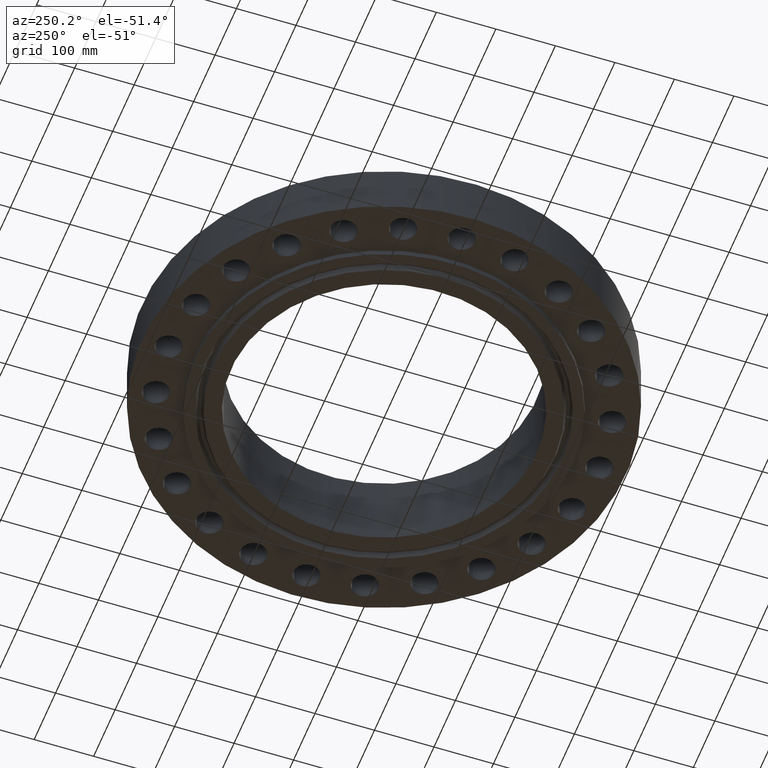
[diagram: clean part render]
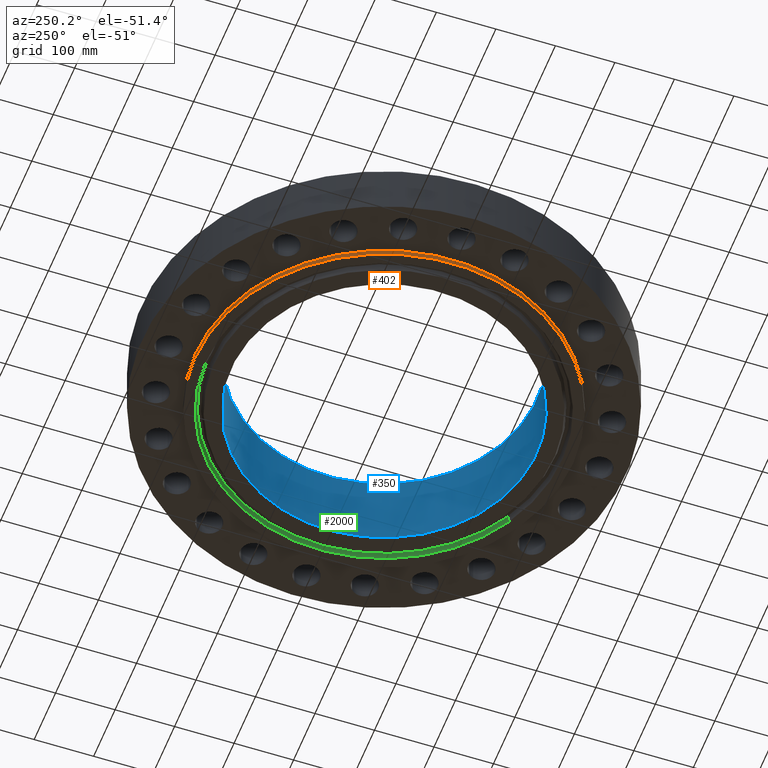
[diagram: same view with three faces highlighted in distinct colors, each labeled with its STEP entity id]
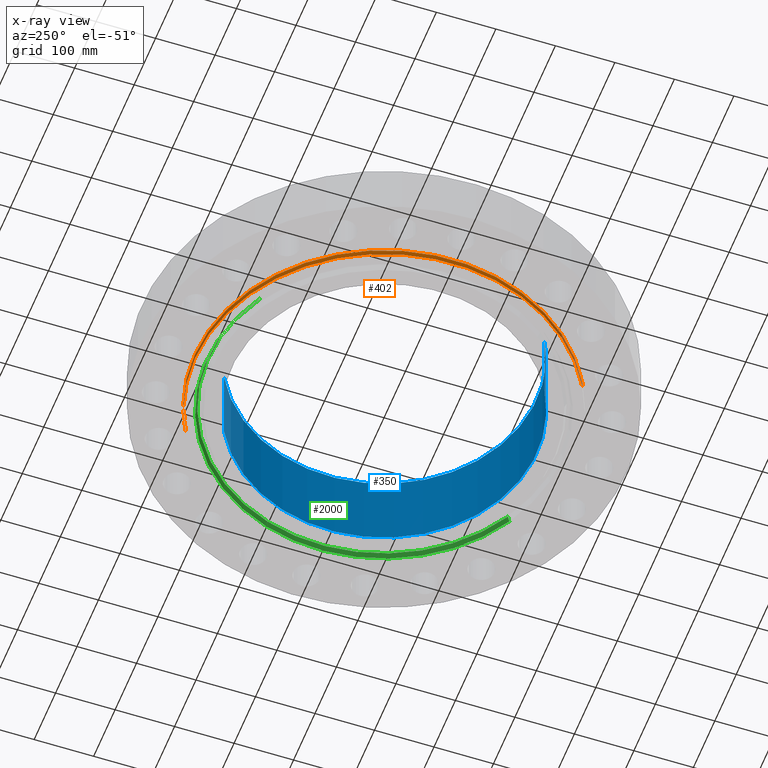
[diagram: x-ray of the same camera — body ghosted, the three highlighted faces saturated]
A machine part, auxiliary view with three faces highlighted in distinct colors.
The next image is the same camera in x-ray (body ghosted, the three faces saturated) — at least one of them is partly hidden behind the body in this view.
Their STEP definitions:

[orange] entity #402 — the highlighted cylindrical surface (partial cylindrical patch) has radius 317.5 mm, axis along (0, 0, -1).
#366=AXIS2_PLACEMENT_3D('Cylinder Axis2P3D',#363,#364,#365) ;
#370=AXIS2_PLACEMENT_3D('Circle Axis2P3D',#368,#369,$) ;
#386=AXIS2_PLACEMENT_3D('Circle Axis2P3D',#384,#385,$) ;
#363=CARTESIAN_POINT('Axis2P3D Location',(0.,0.,2.31250000001)) ;
#368=CARTESIAN_POINT('Axis2P3D Location',(0.,0.,-0.375000000001)) ;
#372=CARTESIAN_POINT('Vertex',(-5.99281923258,-10.9697820237,-0.375000000001)) ;
#374=CARTESIAN_POINT('Vertex',(5.99281923258,10.9697820237,-0.375000000001)) ;
#377=CARTESIAN_POINT('Line Origine',(-5.99281923258,-10.9697820237,-0.187500000001)) ;
#381=CARTESIAN_POINT('Vertex',(-5.99281923258,-10.9697820237,1.39870617276E-015)) ;
#384=CARTESIAN_POINT('Axis2P3D Location',(0.,0.,1.39870617276E-015)) ;
#388=CARTESIAN_POINT('Vertex',(5.99281923258,10.9697820237,1.39870617276E-015)) ;
#391=CARTESIAN_POINT('Line Origine',(5.99281923258,10.9697820237,-0.187500000001)) ;
#364=DIRECTION('Axis2P3D Direction',(0.,0.,-0.0393700787402)) ;
#365=DIRECTION('Axis2P3D XDirection',(0.0188750212049,0.0345504945626,0.)) ;
#369=DIRECTION('Axis2P3D Direction',(0.,0.,-0.0393700787402)) ;
#378=DIRECTION('Vector Direction',(0.,0.,-0.0393700787402)) ;
#385=DIRECTION('Axis2P3D Direction',(0.,0.,-0.0393700787402)) ;
#392=DIRECTION('Vector Direction',(0.,0.,-0.0393700787402)) ;
#379=VECTOR('Line Direction',#378,0.0393700787402) ;
#393=VECTOR('Line Direction',#392,0.0393700787402) ;
#397=ORIENTED_EDGE('',*,*,#376,.F.) ;
#398=ORIENTED_EDGE('',*,*,#383,.T.) ;
#399=ORIENTED_EDGE('',*,*,#390,.T.) ;
#400=ORIENTED_EDGE('',*,*,#395,.F.) ;
#402=ADVANCED_FACE('PartBody',(#401),#367,.T.) ;
#371=CIRCLE('generated circle',#370,12.5000000001) ;
#387=CIRCLE('generated circle',#386,12.5000000001) ;
#367=CYLINDRICAL_SURFACE('generated cylinder',#366,12.5000000001) ;
#376=EDGE_CURVE('',#373,#375,#371,.T.) ;
#383=EDGE_CURVE('',#373,#382,#380,.F.) ;
#390=EDGE_CURVE('',#382,#389,#387,.T.) ;
#395=EDGE_CURVE('',#375,#389,#394,.F.) ;
#396=EDGE_LOOP('',(#397,#398,#399,#400)) ;
#401=FACE_OUTER_BOUND('',#396,.T.) ;
#380=LINE('Line',#377,#379) ;
#394=LINE('Line',#391,#393) ;
#373=VERTEX_POINT('',#372) ;
#375=VERTEX_POINT('',#374) ;
#382=VERTEX_POINT('',#381) ;
#389=VERTEX_POINT('',#388) ;

[blue] entity #350 — the highlighted cylindrical surface (partial cylindrical patch) has radius 256.54 mm, axis along (0, 0, -1).
#312=AXIS2_PLACEMENT_3D('Circle Axis2P3D',#310,#311,$) ;
#323=AXIS2_PLACEMENT_3D('Cylinder Axis2P3D',#320,#321,#322) ;
#334=AXIS2_PLACEMENT_3D('Circle Axis2P3D',#332,#333,$) ;
#305=CARTESIAN_POINT('Vertex',(-4.84219793992,-8.86358387513,5.00000000002)) ;
#307=CARTESIAN_POINT('Vertex',(4.84219793992,8.86358387513,5.00000000002)) ;
#310=CARTESIAN_POINT('Axis2P3D Location',(0.,0.,5.00000000002)) ;
#320=CARTESIAN_POINT('Axis2P3D Location',(0.,0.,2.31250000001)) ;
#325=CARTESIAN_POINT('Line Origine',(4.84219793992,8.86358387513,2.31250000001)) ;
#329=CARTESIAN_POINT('Vertex',(4.84219793992,8.86358387513,-0.375000000001)) ;
#332=CARTESIAN_POINT('Axis2P3D Location',(0.,0.,-0.375000000001)) ;
#336=CARTESIAN_POINT('Vertex',(-4.84219793992,-8.86358387513,-0.375000000001)) ;
#339=CARTESIAN_POINT('Line Origine',(-4.84219793992,-8.86358387513,2.31250000001)) ;
#311=DIRECTION('Axis2P3D Direction',(0.,0.,-0.0393700787402)) ;
#321=DIRECTION('Axis2P3D Direction',(0.,0.,-0.0393700787402)) ;
#322=DIRECTION('Axis2P3D XDirection',(-0.0188750212049,-0.0345504945626,0.)) ;
#326=DIRECTION('Vector Direction',(0.,0.,-0.0393700787402)) ;
#333=DIRECTION('Axis2P3D Direction',(0.,0.,-0.0393700787402)) ;
#340=DIRECTION('Vector Direction',(0.,0.,-0.0393700787402)) ;
#327=VECTOR('Line Direction',#326,0.0393700787402) ;
#341=VECTOR('Line Direction',#340,0.0393700787402) ;
#345=ORIENTED_EDGE('',*,*,#314,.F.) ;
#346=ORIENTED_EDGE('',*,*,#331,.T.) ;
#347=ORIENTED_EDGE('',*,*,#338,.T.) ;
#348=ORIENTED_EDGE('',*,*,#343,.F.) ;
#350=ADVANCED_FACE('PartBody',(#349),#324,.F.) ;
#313=CIRCLE('generated circle',#312,10.1) ;
#335=CIRCLE('generated circle',#334,10.1) ;
#324=CYLINDRICAL_SURFACE('generated cylinder',#323,10.1) ;
#314=EDGE_CURVE('',#308,#306,#313,.T.) ;
#331=EDGE_CURVE('',#308,#330,#328,.T.) ;
#338=EDGE_CURVE('',#330,#337,#335,.T.) ;
#343=EDGE_CURVE('',#306,#337,#342,.T.) ;
#344=EDGE_LOOP('',(#345,#346,#347,#348)) ;
#349=FACE_OUTER_BOUND('',#344,.T.) ;
#328=LINE('Line',#325,#327) ;
#342=LINE('Line',#339,#341) ;
#306=VERTEX_POINT('',#305) ;
#308=VERTEX_POINT('',#307) ;
#330=VERTEX_POINT('',#329) ;
#337=VERTEX_POINT('',#336) ;

[green] entity #2000 — the highlighted conical surface has half-angle 23 deg.
#1861=AXIS2_PLACEMENT_3D('Circle Axis2P3D',#1859,#1860,$) ;
#1935=AXIS2_PLACEMENT_3D('Cone Axis2P3D',#1932,#1933,#1934) ;
#1956=AXIS2_PLACEMENT_3D('Circle Axis2P3D',#1954,#1955,$) ;
#1854=CARTESIAN_POINT('Vertex',(5.64074110266,-10.3253073298,-0.375000000001)) ;
#1856=CARTESIAN_POINT('Vertex',(-5.64074110266,10.3253073298,-0.375000000001)) ;
#1859=CARTESIAN_POINT('Axis2P3D Location',(-1.39870617276E-015,0.,-0.375000000001)) ;
#1901=CARTESIAN_POINT('Vertex',(-5.57217637074,10.1998004298,-0.0380793044696)) ;
#1903=CARTESIAN_POINT('Vertex',(5.57217637074,-10.1998004298,-0.0380793044696)) ;
#1932=CARTESIAN_POINT('Axis2P3D Location',(0.,0.,-0.0380793044696)) ;
#1937=CARTESIAN_POINT('Line Origine',(-5.6064587367,10.2625538798,-0.206539652236)) ;
#1942=CARTESIAN_POINT('Line Origine',(5.6064587367,-10.2625538798,-0.206539652236)) ;
#1954=CARTESIAN_POINT('Axis2P3D Location',(0.,0.,-0.0380793044696)) ;
#1860=DIRECTION('Axis2P3D Direction',(0.,0.,-0.0393700787402)) ;
#1933=DIRECTION('Axis2P3D Direction',(-0.,-0.,-0.0393700787402)) ;
#1934=DIRECTION('Axis2P3D XDirection',(-0.0188750212049,0.0345504945626,0.)) ;
#1938=DIRECTION('Vector Direction',(-0.00737505833565,0.0134999537303,-0.0362403485611)) ;
#1943=DIRECTION('Vector Direction',(0.00737505833565,-0.0134999537303,-0.0362403485611)) ;
#1955=DIRECTION('Axis2P3D Direction',(0.,0.,0.0393700787402)) ;
#1939=VECTOR('Line Direction',#1938,0.0393700787402) ;
#1944=VECTOR('Line Direction',#1943,0.0393700787402) ;
#1995=ORIENTED_EDGE('',*,*,#1863,.T.) ;
#1996=ORIENTED_EDGE('',*,*,#1946,.T.) ;
#1997=ORIENTED_EDGE('',*,*,#1958,.T.) ;
#1998=ORIENTED_EDGE('',*,*,#1941,.F.) ;
#2000=ADVANCED_FACE('PartBody',(#1999),#1936,.F.) ;
#1862=CIRCLE('generated circle',#1861,11.765625) ;
#1957=CIRCLE('generated circle',#1956,11.6226106497) ;
#1936=CONICAL_SURFACE('Cone',#1935,11.6226106497,0.401425727959) ;
#1863=EDGE_CURVE('',#1857,#1855,#1862,.T.) ;
#1941=EDGE_CURVE('',#1857,#1902,#1940,.F.) ;
#1946=EDGE_CURVE('',#1855,#1904,#1945,.F.) ;
#1958=EDGE_CURVE('',#1904,#1902,#1957,.T.) ;
#1994=EDGE_LOOP('',(#1995,#1996,#1997,#1998)) ;
#1999=FACE_OUTER_BOUND('',#1994,.T.) ;
#1940=LINE('Line',#1937,#1939) ;
#1945=LINE('Line',#1942,#1944) ;
#1855=VERTEX_POINT('',#1854) ;
#1857=VERTEX_POINT('',#1856) ;
#1902=VERTEX_POINT('',#1901) ;
#1904=VERTEX_POINT('',#1903) ;